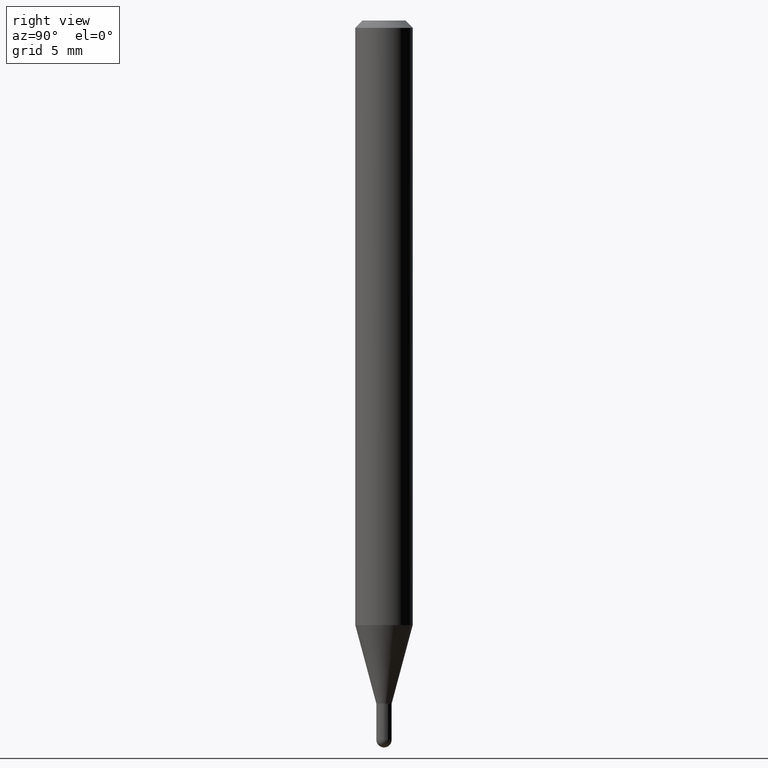
[diagram: clean part render]
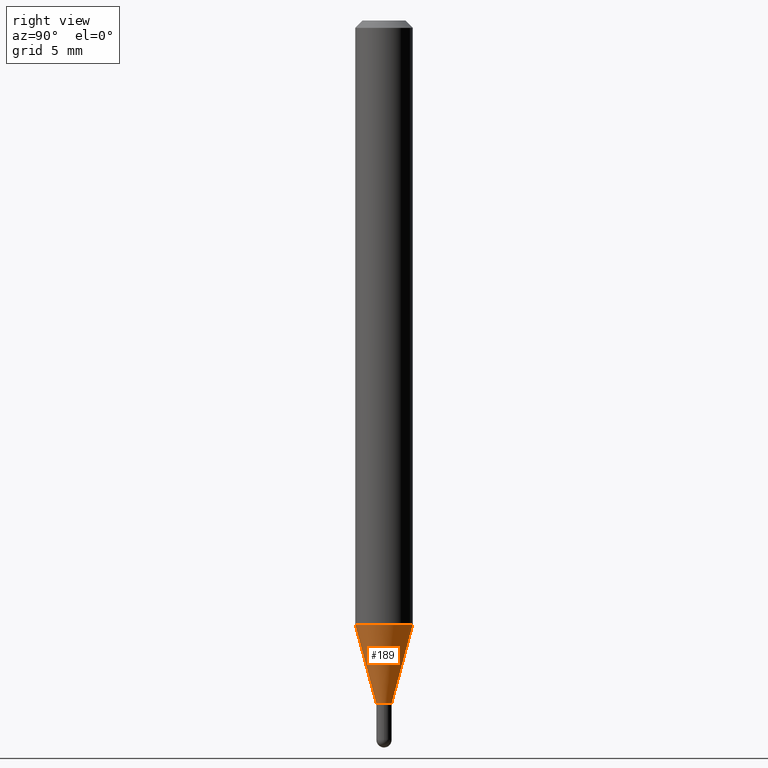
[diagram: same view with one face highlighted and labeled with its STEP entity id]
A machine part, right view. The second image highlights one B-rep face of the part: STEP entity #189.
In plain terms, the highlighted conical surface has half-angle 15 deg.
Its self-contained STEP definition (entity closure, byte-faithful):
#25 = DIRECTION ( 'NONE',  ( -6.982962677686265922E-15, -1.000000000000000000, 0.000000000000000000 ) ) ;
#61 = EDGE_CURVE ( 'NONE', #371, #277, #154, .T. ) ;
#69 = DIRECTION ( 'NONE',  ( -6.982962677686265922E-15, -1.000000000000000000, 4.626330217890369336E-15 ) ) ;
#70 = VERTEX_POINT ( 'NONE', #265 ) ;
#73 = LINE ( 'NONE', #77, #165 ) ;
#77 = CARTESIAN_POINT ( 'NONE',  ( 9.805489753492588379E-17, 0.01379999999999471580, -1.413100000000000023 ) ) ;
#89 = ORIENTED_EDGE ( 'NONE', *, *, #238, .T. ) ;
#90 = DIRECTION ( 'NONE',  ( -2.445466752382438032E-29, 3.491484280005505170E-15, 1.000000000000000000 ) ) ;
#113 = EDGE_CURVE ( 'NONE', #217, #371, #499, .T. ) ;
#122 = CARTESIAN_POINT ( 'NONE',  ( -9.636488495203347041E-17, -0.01380000000000458464, -1.413100000000000023 ) ) ;
#132 = CIRCLE ( 'NONE', #466, 0.01379999999999965109 ) ;
#154 = CIRCLE ( 'NONE', #342, 0.05904999999999999832 ) ;
#165 = VECTOR ( 'NONE', #241, 39.37007874015748143 ) ;
#178 = CARTESIAN_POINT ( 'NONE',  ( 3.042710138684578593E-29, -4.344190984187706685E-15, -1.244224700957512697 ) ) ;
#189 = ADVANCED_FACE ( 'NONE', ( #299 ), #256, .T. ) ;
#195 = DIRECTION ( 'NONE',  ( -2.445466752382438032E-29, 3.491484280005505170E-15, 1.000000000000000000 ) ) ;
#217 = VERTEX_POINT ( 'NONE', #122 ) ;
#225 = DIRECTION ( 'NONE',  ( -2.445466752382438032E-29, 3.491484280005505170E-15, 1.000000000000000000 ) ) ;
#238 = EDGE_CURVE ( 'NONE', #70, #277, #73, .T. ) ;
#241 = DIRECTION ( 'NONE',  ( 1.839019923739653563E-15, 0.2588190451025324523, 0.9659258262890650926 ) ) ;
#244 = CARTESIAN_POINT ( 'NONE',  ( 4.195754854663695683E-16, 0.05904999999999565458, -1.244224700957513141 ) ) ;
#256 = CONICAL_SURFACE ( 'NONE', #280, 0.01379999999999965109, 0.2617993877991580121 ) ;
#265 = CARTESIAN_POINT ( 'NONE',  ( 2.588151915006478924E-16, 0.01379999999999471580, -1.413100000000000023 ) ) ;
#277 = VERTEX_POINT ( 'NONE', #244 ) ;
#280 = AXIS2_PLACEMENT_3D ( 'NONE', #458, #195, #341 ) ;
#298 = EDGE_LOOP ( 'NONE', ( #472, #89, #424, #413 ) ) ;
#299 = FACE_OUTER_BOUND ( 'NONE', #298, .T. ) ;
#312 = CARTESIAN_POINT ( 'NONE',  ( -4.123439461173437109E-16, -0.05905000000000436289, -1.244224700957512475 ) ) ;
#341 = DIRECTION ( 'NONE',  ( -6.982962677686265922E-15, -1.000000000000000000, 0.000000000000000000 ) ) ;
#342 = AXIS2_PLACEMENT_3D ( 'NONE', #178, #225, #69 ) ;
#347 = DIRECTION ( 'NONE',  ( -1.807323732225382599E-15, -0.2588190451025256800, 0.9659258262890669799 ) ) ;
#351 = VECTOR ( 'NONE', #347, 39.37007874015748143 ) ;
#370 = EDGE_CURVE ( 'NONE', #217, #70, #132, .T. ) ;
#371 = VERTEX_POINT ( 'NONE', #312 ) ;
#413 = ORIENTED_EDGE ( 'NONE', *, *, #113, .F. ) ;
#424 = ORIENTED_EDGE ( 'NONE', *, *, #61, .F. ) ;
#455 = CARTESIAN_POINT ( 'NONE',  ( -9.636488495203347041E-17, -0.01380000000000458464, -1.413100000000000023 ) ) ;
#458 = CARTESIAN_POINT ( 'NONE',  ( 3.455689067791622925E-29, -4.933816436075779894E-15, -1.413100000000000023 ) ) ;
#466 = AXIS2_PLACEMENT_3D ( 'NONE', #498, #90, #25 ) ;
#472 = ORIENTED_EDGE ( 'NONE', *, *, #370, .T. ) ;
#498 = CARTESIAN_POINT ( 'NONE',  ( 3.455689067791622925E-29, -4.933816436075779894E-15, -1.413100000000000023 ) ) ;
#499 = LINE ( 'NONE', #455, #351 ) ;